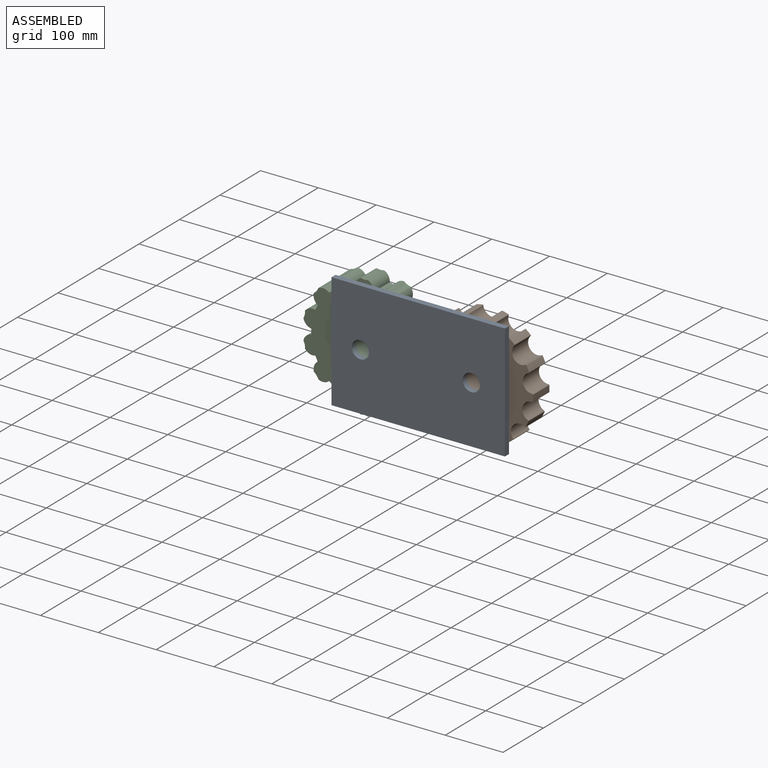
[diagram: assembled view]
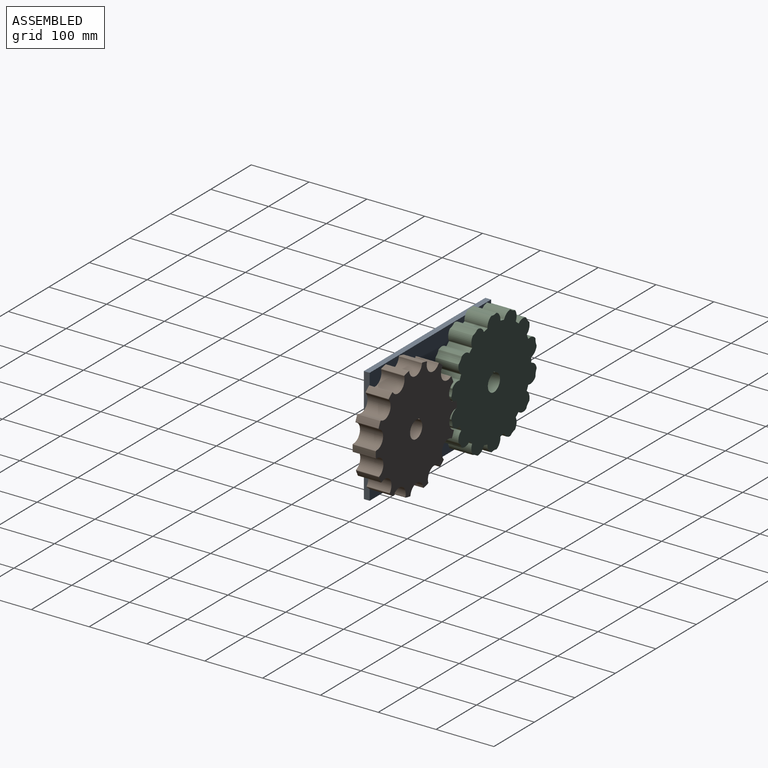
[diagram: assembled view, second angle]
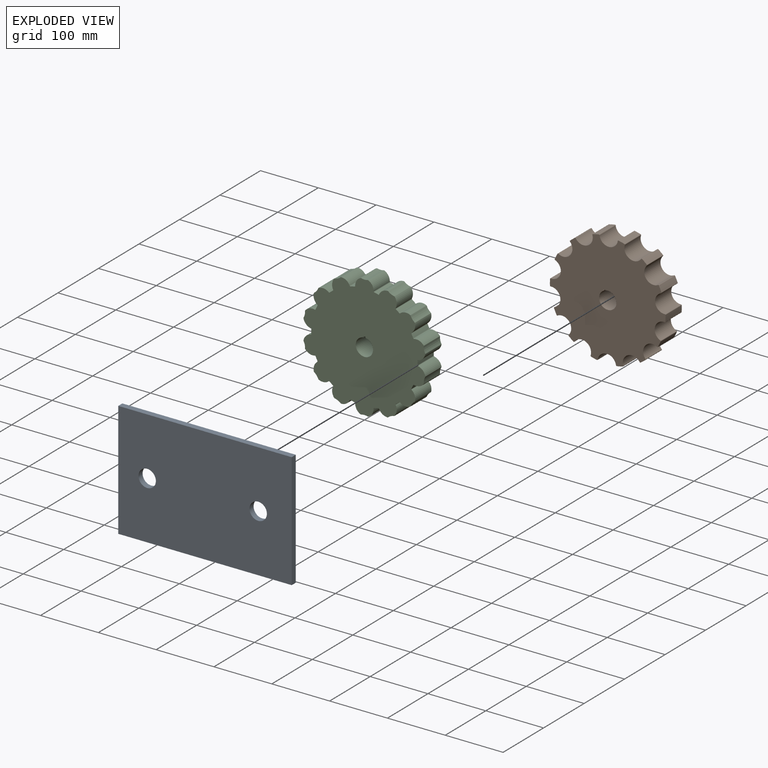
[diagram: exploded view]
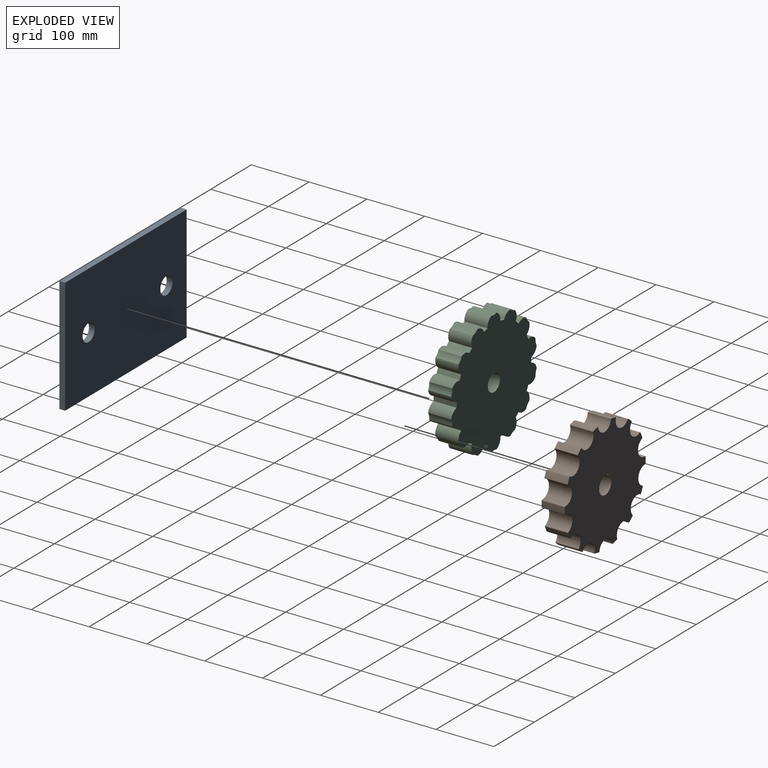
[diagram: exploded view, second angle]
ASSEMBLY  parts=3 mates=2
PART A: 8 faces, bbox 300x10x200 mm
  f0: plane 200x10mm, normal (1,0,0), area 2000mm2, adj f1,f3,f4,f5
  f1: plane 300x10mm, normal (0,0,1), area 3000mm2, adj f0,f2,f4,f5
  f2: plane 200x10mm, normal (-1,0,0), area 2000mm2, adj f1,f3,f4,f5
  f3: plane 300x10mm, normal (0,0,-1), area 3000mm2, adj f0,f2,f4,f5
  f4: plane 300x200mm, normal (0,-1,0), area 58586.3mm2, adj f0,f1,f2,f3,f6,f7
  f5: plane 300x200mm, normal (0,1,0), area 58586.3mm2, adj f0,f1,f2,f3,f6,f7
  f6: cylinder r=15mm len=30mm, axis (0,-1,0), area 942.5mm2, adj f4,f5
  f7: cylinder r=15mm len=30mm, axis (0,-1,0), area 942.5mm2, adj f4,f5
PART B: 62 faces, bbox 200x40x197.1 mm
  f0: plane 200x197.12mm, normal (0,-1,0), area 25259.8mm2, adj f2,f3,f4,f5,f6,f7,f8,f9
  f1: plane 200x197.12mm, normal (0,1,0), area 25259.8mm2, adj f2,f3,f4,f5,f6,f7,f8,f9
  f2: cylinder r=15mm len=40mm, axis (0,-1,0), area 3609.4mm2, adj f0,f1,f59,f60
  f3: cylinder r=100mm len=40mm, axis (0,1,0), area 429.1mm2, adj f0,f1,f4,f58
  f4: cylinder r=1mm len=40mm, axis (0,1,0), area 63.9mm2, adj f0,f1,f3,f5
  f5: cylinder r=16mm len=40mm, axis (0,1,0), area 1826.3mm2, adj f0,f1,f4,f6
  f6: cylinder r=1mm len=40mm, axis (0,1,0), area 63.9mm2, adj f0,f1,f5,f7
  f7: cylinder r=100mm len=40mm, axis (0,1,0), area 429.1mm2, adj f0,f1,f6,f8
  f8: cylinder r=1mm len=40mm, axis (0,1,0), area 63.9mm2, adj f0,f1,f7,f9
  f9: cylinder r=16mm len=40mm, axis (0,1,0), area 1826.3mm2, adj f0,f1,f8,f10
  f10: cylinder r=1mm len=40mm, axis (0,1,0), area 63.9mm2, adj f0,f1,f9,f11
  f11: cylinder r=100mm len=40mm, axis (0,1,0), area 429.1mm2, adj f0,f1,f10,f12
  f12: cylinder r=1mm len=40mm, axis (0,1,0), area 63.9mm2, adj f0,f1,f11,f13
  f13: cylinder r=16mm len=40mm, axis (0,1,0), area 1826.3mm2, adj f0,f1,f12,f14
  f14: cylinder r=1mm len=40mm, axis (0,1,0), area 63.9mm2, adj f0,f1,f13,f15
  f15: cylinder r=100mm len=40mm, axis (0,1,0), area 429.1mm2, adj f0,f1,f14,f16
  f16: cylinder r=1mm len=40mm, axis (0,1,0), area 63.9mm2, adj f0,f1,f15,f17
  f17: cylinder r=16mm len=40mm, axis (0,1,0), area 1826.3mm2, adj f0,f1,f16,f18
  f18: cylinder r=1mm len=40mm, axis (0,1,0), area 63.9mm2, adj f0,f1,f17,f19
  f19: cylinder r=100mm len=40mm, axis (0,1,0), area 429.1mm2, adj f0,f1,f18,f20
  f20: cylinder r=1mm len=40mm, axis (0,1,0), area 63.9mm2, adj f0,f1,f19,f21
  f21: cylinder r=16mm len=40mm, axis (0,1,0), area 1826.3mm2, adj f0,f1,f20,f22
  f22: cylinder r=1mm len=40mm, axis (0,1,0), area 63.9mm2, adj f0,f1,f21,f23
  f23: cylinder r=100mm len=40mm, axis (0,1,0), area 429.1mm2, adj f0,f1,f22,f24
  f24: cylinder r=1mm len=40mm, axis (0,1,0), area 63.9mm2, adj f0,f1,f23,f25
  f25: cylinder r=16mm len=40mm, axis (0,1,0), area 1826.3mm2, adj f0,f1,f24,f26
  f26: cylinder r=1mm len=40mm, axis (0,1,0), area 63.9mm2, adj f0,f1,f25,f27
  f27: cylinder r=100mm len=40mm, axis (0,1,0), area 429.1mm2, adj f0,f1,f26,f28
  f28: cylinder r=1mm len=40mm, axis (0,1,0), area 63.9mm2, adj f0,f1,f27,f29
  f29: cylinder r=16mm len=40mm, axis (0,1,0), area 1826.3mm2, adj f0,f1,f28,f30
  f30: cylinder r=1mm len=40mm, axis (0,1,0), area 63.9mm2, adj f0,f1,f29,f31
  f31: cylinder r=100mm len=40mm, axis (0,1,0), area 429.1mm2, adj f0,f1,f30,f32
  f32: cylinder r=1mm len=40mm, axis (0,1,0), area 63.9mm2, adj f0,f1,f31,f33
  f33: cylinder r=16mm len=40mm, axis (0,1,0), area 1826.3mm2, adj f0,f1,f32,f34
  f34: cylinder r=1mm len=40mm, axis (0,1,0), area 63.9mm2, adj f0,f1,f33,f35
  f35: cylinder r=100mm len=40mm, axis (0,1,0), area 429.1mm2, adj f0,f1,f34,f36
  f36: cylinder r=1mm len=40mm, axis (0,1,0), area 63.9mm2, adj f0,f1,f35,f37
  f37: cylinder r=16mm len=40mm, axis (0,1,0), area 1826.3mm2, adj f0,f1,f36,f38
  f38: cylinder r=1mm len=40mm, axis (0,1,0), area 63.9mm2, adj f0,f1,f37,f39
  f39: cylinder r=100mm len=40mm, axis (0,1,0), area 429.1mm2, adj f0,f1,f38,f40
  f40: cylinder r=1mm len=40mm, axis (0,1,0), area 63.9mm2, adj f0,f1,f39,f41
  f41: cylinder r=16mm len=40mm, axis (0,1,0), area 1826.3mm2, adj f0,f1,f40,f42
  f42: cylinder r=1mm len=40mm, axis (0,1,0), area 63.9mm2, adj f0,f1,f41,f43
  f43: cylinder r=100mm len=40mm, axis (0,1,0), area 429.1mm2, adj f0,f1,f42,f44
  f44: cylinder r=1mm len=40mm, axis (0,1,0), area 63.9mm2, adj f0,f1,f43,f45
  f45: cylinder r=16mm len=40mm, axis (0,1,0), area 1826.3mm2, adj f0,f1,f44,f46
  f46: cylinder r=1mm len=40mm, axis (0,1,0), area 63.9mm2, adj f0,f1,f45,f47
  f47: cylinder r=100mm len=40mm, axis (0,1,0), area 429.1mm2, adj f0,f1,f46,f48
  f48: cylinder r=1mm len=40mm, axis (0,1,0), area 63.9mm2, adj f0,f1,f47,f49
  f49: cylinder r=16mm len=40mm, axis (0,1,0), area 1826.3mm2, adj f0,f1,f48,f50
  f50: cylinder r=1mm len=40mm, axis (0,1,0), area 63.9mm2, adj f0,f1,f49,f51
  f51: cylinder r=100mm len=40mm, axis (0,1,0), area 429.1mm2, adj f0,f1,f50,f52
  f52: cylinder r=1mm len=40mm, axis (0,1,0), area 63.9mm2, adj f0,f1,f51,f53
  f53: cylinder r=16mm len=40mm, axis (0,1,0), area 1826.3mm2, adj f0,f1,f52,f54
  f54: cylinder r=1mm len=40mm, axis (0,1,0), area 63.9mm2, adj f0,f1,f53,f55
  f55: cylinder r=100mm len=40mm, axis (0,1,0), area 429.1mm2, adj f0,f1,f54,f56
  f56: cylinder r=1mm len=40mm, axis (0,1,0), area 63.9mm2, adj f0,f1,f55,f57
  f57: cylinder r=16mm len=40mm, axis (0,1,0), area 1826.3mm2, adj f0,f1,f56,f58
  f58: cylinder r=1mm len=40mm, axis (0,1,0), area 63.9mm2, adj f0,f1,f3,f57
  f59: plane 40x1.13mm, normal (-1,0,0), area 45.4mm2, adj f0,f1,f2,f61
  f60: plane 40x1.13mm, normal (1,0,0), area 45.4mm2, adj f0,f1,f2,f61
  f61: plane 40x4mm, normal (0,0,-1), area 160mm2, adj f0,f1,f59,f60
PART C: 118 faces, bbox 210.8x40x213.4 mm
  f0: plane 213.4x210.82mm, normal (0,-1,0), area 31461.3mm2, adj f2,f3,f4,f5,f6,f7,f8,f9
  f1: plane 213.4x210.82mm, normal (0,1,0), area 31461.3mm2, adj f2,f3,f4,f5,f6,f7,f8,f9
  f2: cylinder r=15mm len=40mm, axis (0,-1,0), area 3609.4mm2, adj f0,f1,f115,f116
  f3: cylinder r=92mm len=40mm, axis (0,1,0), area 299.4mm2, adj f0,f1,f4,f114
  f4: cylinder r=1mm len=40mm, axis (0,1,0), area 56.8mm2, adj f0,f1,f3,f5
  f5: cylinder r=16mm len=40mm, axis (0,1,0), area 758.2mm2, adj f0,f1,f4,f6
  f6: cylinder r=1mm len=40mm, axis (0,1,0), area 28.6mm2, adj f0,f1,f5,f7
  f7: cylinder r=20mm len=40mm, axis (0,1,0), area 472.3mm2, adj f0,f1,f6,f8
  f8: cylinder r=1mm len=40mm, axis (0,1,0), area 28.6mm2, adj f0,f1,f7,f9
  f9: cylinder r=16mm len=40mm, axis (0,1,0), area 758.2mm2, adj f0,f1,f8,f10
  f10: cylinder r=1mm len=40mm, axis (0,1,0), area 56.8mm2, adj f0,f1,f9,f11
  f11: cylinder r=92mm len=40mm, axis (0,1,0), area 299.4mm2, adj f0,f1,f10,f12
  f12: cylinder r=1mm len=40mm, axis (0,1,0), area 56.8mm2, adj f0,f1,f11,f13
  f13: cylinder r=16mm len=40mm, axis (0,1,0), area 758.2mm2, adj f0,f1,f12,f14
  f14: cylinder r=1mm len=40mm, axis (0,1,0), area 28.6mm2, adj f0,f1,f13,f15
  f15: cylinder r=20mm len=40mm, axis (0,1,0), area 472.3mm2, adj f0,f1,f14,f16
  f16: cylinder r=1mm len=40mm, axis (0,1,0), area 28.6mm2, adj f0,f1,f15,f17
  f17: cylinder r=16mm len=40mm, axis (0,1,0), area 758.2mm2, adj f0,f1,f16,f18
  f18: cylinder r=1mm len=40mm, axis (0,1,0), area 56.8mm2, adj f0,f1,f17,f19
  f19: cylinder r=92mm len=40mm, axis (0,1,0), area 299.4mm2, adj f0,f1,f18,f20
  f20: cylinder r=1mm len=40mm, axis (0,1,0), area 56.8mm2, adj f0,f1,f19,f21
  f21: cylinder r=16mm len=40mm, axis (0,1,0), area 758.2mm2, adj f0,f1,f20,f22
  f22: cylinder r=1mm len=40mm, axis (0,1,0), area 28.6mm2, adj f0,f1,f21,f23
  f23: cylinder r=20mm len=40mm, axis (0,1,0), area 472.3mm2, adj f0,f1,f22,f24
  f24: cylinder r=1mm len=40mm, axis (0,1,0), area 28.6mm2, adj f0,f1,f23,f25
  f25: cylinder r=16mm len=40mm, axis (0,1,0), area 758.2mm2, adj f0,f1,f24,f26
  f26: cylinder r=1mm len=40mm, axis (0,1,0), area 56.8mm2, adj f0,f1,f25,f27
  f27: cylinder r=92mm len=40mm, axis (0,1,0), area 299.4mm2, adj f0,f1,f26,f28
  f28: cylinder r=1mm len=40mm, axis (0,1,0), area 56.8mm2, adj f0,f1,f27,f29
  f29: cylinder r=16mm len=40mm, axis (0,1,0), area 758.2mm2, adj f0,f1,f28,f30
  f30: cylinder r=1mm len=40mm, axis (0,1,0), area 28.6mm2, adj f0,f1,f29,f31
  f31: cylinder r=20mm len=40mm, axis (0,1,0), area 472.3mm2, adj f0,f1,f30,f32
  f32: cylinder r=1mm len=40mm, axis (0,1,0), area 28.6mm2, adj f0,f1,f31,f33
  f33: cylinder r=16mm len=40mm, axis (0,1,0), area 758.2mm2, adj f0,f1,f32,f34
  f34: cylinder r=1mm len=40mm, axis (0,1,0), area 56.8mm2, adj f0,f1,f33,f35
  f35: cylinder r=92mm len=40mm, axis (0,1,0), area 299.4mm2, adj f0,f1,f34,f36
  f36: cylinder r=1mm len=40mm, axis (0,1,0), area 56.8mm2, adj f0,f1,f35,f37
  f37: cylinder r=16mm len=40mm, axis (0,1,0), area 758.2mm2, adj f0,f1,f36,f38
  f38: cylinder r=1mm len=40mm, axis (0,1,0), area 28.6mm2, adj f0,f1,f37,f39
  f39: cylinder r=20mm len=40mm, axis (0,1,0), area 472.3mm2, adj f0,f1,f38,f40
  f40: cylinder r=1mm len=40mm, axis (0,1,0), area 28.6mm2, adj f0,f1,f39,f41
  f41: cylinder r=16mm len=40mm, axis (0,1,0), area 758.2mm2, adj f0,f1,f40,f42
  f42: cylinder r=1mm len=40mm, axis (0,1,0), area 56.8mm2, adj f0,f1,f41,f43
  f43: cylinder r=92mm len=40mm, axis (0,1,0), area 299.4mm2, adj f0,f1,f42,f44
  f44: cylinder r=1mm len=40mm, axis (0,1,0), area 56.8mm2, adj f0,f1,f43,f45
  f45: cylinder r=16mm len=40mm, axis (0,1,0), area 758.2mm2, adj f0,f1,f44,f46
  f46: cylinder r=1mm len=40mm, axis (0,1,0), area 28.6mm2, adj f0,f1,f45,f47
  f47: cylinder r=20mm len=40mm, axis (0,1,0), area 472.3mm2, adj f0,f1,f46,f48
  f48: cylinder r=1mm len=40mm, axis (0,1,0), area 28.6mm2, adj f0,f1,f47,f49
  f49: cylinder r=16mm len=40mm, axis (0,1,0), area 758.2mm2, adj f0,f1,f48,f50
  f50: cylinder r=1mm len=40mm, axis (0,1,0), area 56.8mm2, adj f0,f1,f49,f51
  f51: cylinder r=92mm len=40mm, axis (0,1,0), area 299.4mm2, adj f0,f1,f50,f52
  f52: cylinder r=1mm len=40mm, axis (0,1,0), area 56.8mm2, adj f0,f1,f51,f53
  f53: cylinder r=16mm len=40mm, axis (0,1,0), area 758.2mm2, adj f0,f1,f52,f54
  f54: cylinder r=1mm len=40mm, axis (0,1,0), area 28.6mm2, adj f0,f1,f53,f55
  f55: cylinder r=20mm len=40mm, axis (0,1,0), area 472.3mm2, adj f0,f1,f54,f56
  f56: cylinder r=1mm len=40mm, axis (0,1,0), area 28.6mm2, adj f0,f1,f55,f57
  f57: cylinder r=16mm len=40mm, axis (0,1,0), area 758.2mm2, adj f0,f1,f56,f58
  f58: cylinder r=1mm len=40mm, axis (0,1,0), area 56.8mm2, adj f0,f1,f57,f59
  f59: cylinder r=92mm len=40mm, axis (0,1,0), area 299.4mm2, adj f0,f1,f58,f60
  f60: cylinder r=1mm len=40mm, axis (0,1,0), area 56.8mm2, adj f0,f1,f59,f61
  f61: cylinder r=16mm len=40mm, axis (0,1,0), area 758.2mm2, adj f0,f1,f60,f62
  f62: cylinder r=1mm len=40mm, axis (0,1,0), area 28.6mm2, adj f0,f1,f61,f63
  f63: cylinder r=20mm len=40mm, axis (0,1,0), area 472.3mm2, adj f0,f1,f62,f64
  f64: cylinder r=1mm len=40mm, axis (0,1,0), area 28.6mm2, adj f0,f1,f63,f65
  f65: cylinder r=16mm len=40mm, axis (0,1,0), area 758.2mm2, adj f0,f1,f64,f66
  f66: cylinder r=1mm len=40mm, axis (0,1,0), area 56.8mm2, adj f0,f1,f65,f67
  f67: cylinder r=92mm len=40mm, axis (0,1,0), area 299.4mm2, adj f0,f1,f66,f68
  f68: cylinder r=1mm len=40mm, axis (0,1,0), area 56.8mm2, adj f0,f1,f67,f69
  f69: cylinder r=16mm len=40mm, axis (0,1,0), area 758.2mm2, adj f0,f1,f68,f70
  f70: cylinder r=1mm len=40mm, axis (0,1,0), area 28.6mm2, adj f0,f1,f69,f71
  f71: cylinder r=20mm len=40mm, axis (0,1,0), area 472.3mm2, adj f0,f1,f70,f72
  f72: cylinder r=1mm len=40mm, axis (0,1,0), area 28.6mm2, adj f0,f1,f71,f73
  f73: cylinder r=16mm len=40mm, axis (0,1,0), area 758.2mm2, adj f0,f1,f72,f74
  f74: cylinder r=1mm len=40mm, axis (0,1,0), area 56.8mm2, adj f0,f1,f73,f75
  f75: cylinder r=92mm len=40mm, axis (0,1,0), area 299.4mm2, adj f0,f1,f74,f76
  f76: cylinder r=1mm len=40mm, axis (0,1,0), area 56.8mm2, adj f0,f1,f75,f77
  f77: cylinder r=16mm len=40mm, axis (0,1,0), area 758.2mm2, adj f0,f1,f76,f78
  f78: cylinder r=1mm len=40mm, axis (0,1,0), area 28.6mm2, adj f0,f1,f77,f79
  f79: cylinder r=20mm len=40mm, axis (0,1,0), area 472.3mm2, adj f0,f1,f78,f80
  f80: cylinder r=1mm len=40mm, axis (0,1,0), area 28.6mm2, adj f0,f1,f79,f81
  f81: cylinder r=16mm len=40mm, axis (0,1,0), area 758.2mm2, adj f0,f1,f80,f82
  f82: cylinder r=1mm len=40mm, axis (0,1,0), area 56.8mm2, adj f0,f1,f81,f83
  f83: cylinder r=92mm len=40mm, axis (0,1,0), area 299.4mm2, adj f0,f1,f82,f84
  f84: cylinder r=1mm len=40mm, axis (0,1,0), area 56.8mm2, adj f0,f1,f83,f85
  f85: cylinder r=16mm len=40mm, axis (0,1,0), area 758.2mm2, adj f0,f1,f84,f86
  f86: cylinder r=1mm len=40mm, axis (0,1,0), area 28.6mm2, adj f0,f1,f85,f87
  f87: cylinder r=20mm len=40mm, axis (0,1,0), area 472.3mm2, adj f0,f1,f86,f88
  f88: cylinder r=1mm len=40mm, axis (0,1,0), area 28.6mm2, adj f0,f1,f87,f89
  f89: cylinder r=16mm len=40mm, axis (0,1,0), area 758.2mm2, adj f0,f1,f88,f90
  f90: cylinder r=1mm len=40mm, axis (0,1,0), area 56.8mm2, adj f0,f1,f89,f91
  f91: cylinder r=92mm len=40mm, axis (0,1,0), area 299.4mm2, adj f0,f1,f90,f92
  f92: cylinder r=1mm len=40mm, axis (0,1,0), area 56.8mm2, adj f0,f1,f91,f93
  f93: cylinder r=16mm len=40mm, axis (0,1,0), area 758.2mm2, adj f0,f1,f92,f94
  f94: cylinder r=1mm len=40mm, axis (0,1,0), area 28.6mm2, adj f0,f1,f93,f95
  f95: cylinder r=20mm len=40mm, axis (0,1,0), area 472.3mm2, adj f0,f1,f94,f96
  f96: cylinder r=1mm len=40mm, axis (0,1,0), area 28.6mm2, adj f0,f1,f95,f97
  f97: cylinder r=16mm len=40mm, axis (0,1,0), area 758.2mm2, adj f0,f1,f96,f98
  f98: cylinder r=1mm len=40mm, axis (0,1,0), area 56.8mm2, adj f0,f1,f97,f99
  f99: cylinder r=92mm len=40mm, axis (0,1,0), area 299.4mm2, adj f0,f1,f98,f100
  f100: cylinder r=1mm len=40mm, axis (0,1,0), area 56.8mm2, adj f0,f1,f99,f101
  f101: cylinder r=16mm len=40mm, axis (0,1,0), area 758.2mm2, adj f0,f1,f100,f102
  f102: cylinder r=1mm len=40mm, axis (0,1,0), area 28.6mm2, adj f0,f1,f101,f103
  f103: cylinder r=20mm len=40mm, axis (0,1,0), area 472.3mm2, adj f0,f1,f102,f104
  f104: cylinder r=1mm len=40mm, axis (0,1,0), area 28.6mm2, adj f0,f1,f103,f105
  f105: cylinder r=16mm len=40mm, axis (0,1,0), area 758.2mm2, adj f0,f1,f104,f106
  f106: cylinder r=1mm len=40mm, axis (0,1,0), area 56.8mm2, adj f0,f1,f105,f107
  f107: cylinder r=92mm len=40mm, axis (0,1,0), area 299.4mm2, adj f0,f1,f106,f108
  f108: cylinder r=1mm len=40mm, axis (0,1,0), area 56.8mm2, adj f0,f1,f107,f109
  f109: cylinder r=16mm len=40mm, axis (0,1,0), area 758.2mm2, adj f0,f1,f108,f110
  f110: cylinder r=1mm len=40mm, axis (0,1,0), area 28.6mm2, adj f0,f1,f109,f111
  f111: cylinder r=20mm len=40mm, axis (0,1,0), area 472.3mm2, adj f0,f1,f110,f112
  f112: cylinder r=1mm len=40mm, axis (0,1,0), area 28.6mm2, adj f0,f1,f111,f113
  f113: cylinder r=16mm len=40mm, axis (0,1,0), area 758.2mm2, adj f0,f1,f112,f114
  f114: cylinder r=1mm len=40mm, axis (0,1,0), area 56.8mm2, adj f0,f1,f3,f113
  f115: plane 40x2.13mm, normal (-1,0,0), area 85.4mm2, adj f0,f1,f2,f117
  f116: plane 40x2.13mm, normal (1,0,0), area 85.4mm2, adj f0,f1,f2,f117
  f117: plane 40x4mm, normal (0,0,-1), area 160mm2, adj f0,f1,f115,f116
PLACE A at identity fixed
PLACE B rot(axis=(0.21,0,-0.98),180deg) t=(92,0,0)mm
PLACE C t=(-100,40,0)mm
MATE revolute A.f6 <-> B.f2  axis (0,-1,0) through (92,0,0)mm
MATE revolute A.f7 <-> C.f2  axis (0,1,0) through (-100,0,0)mm
